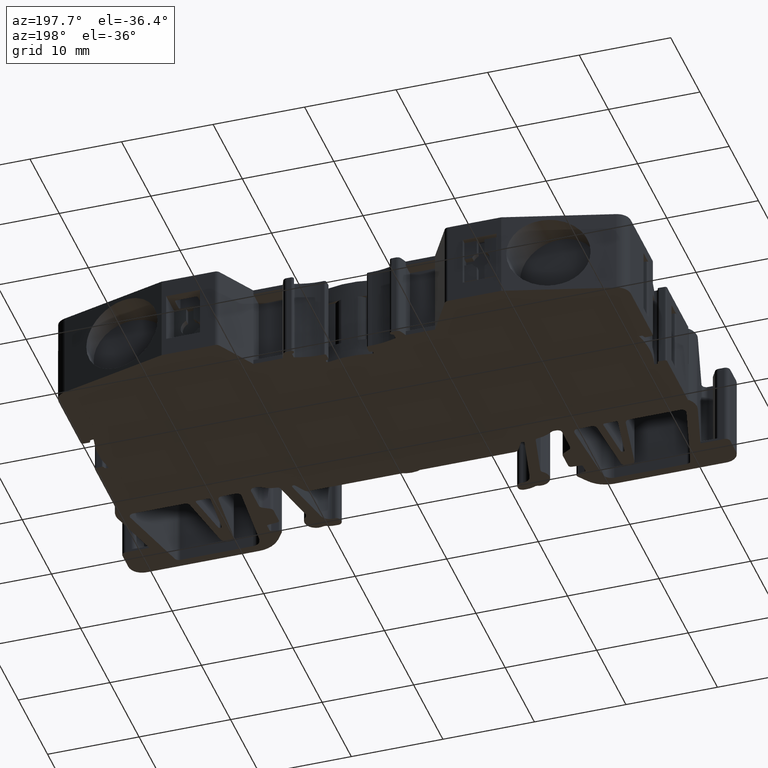
[diagram: clean part render]
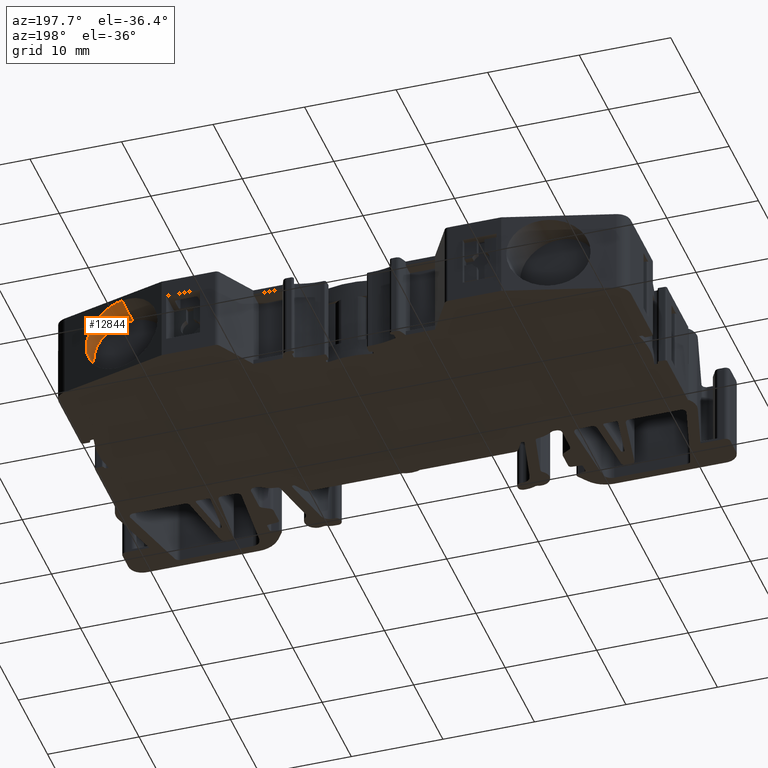
[diagram: same view with one face highlighted and labeled with its STEP entity id]
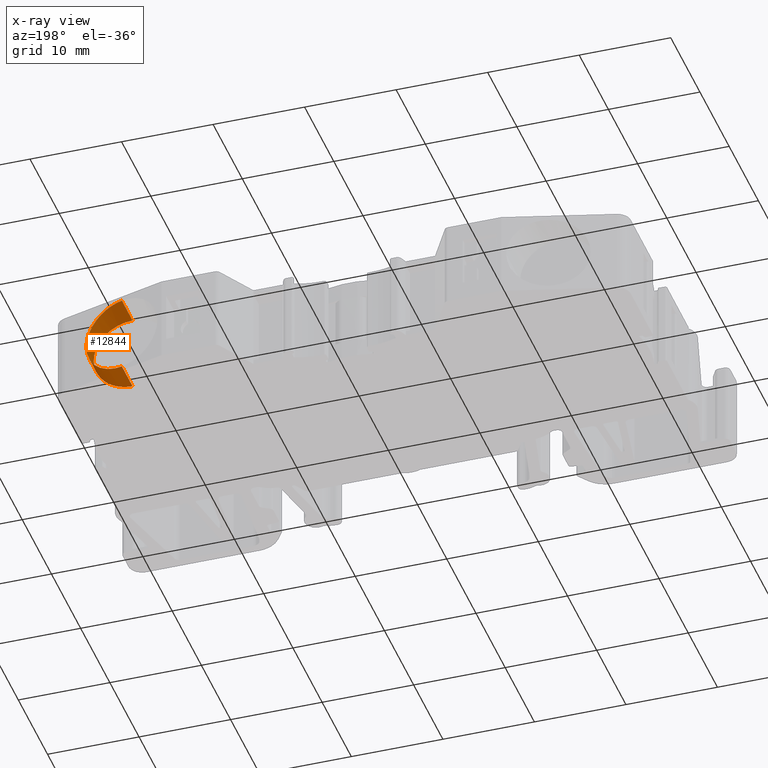
[diagram: x-ray of the same camera — body ghosted, the highlighted face saturated]
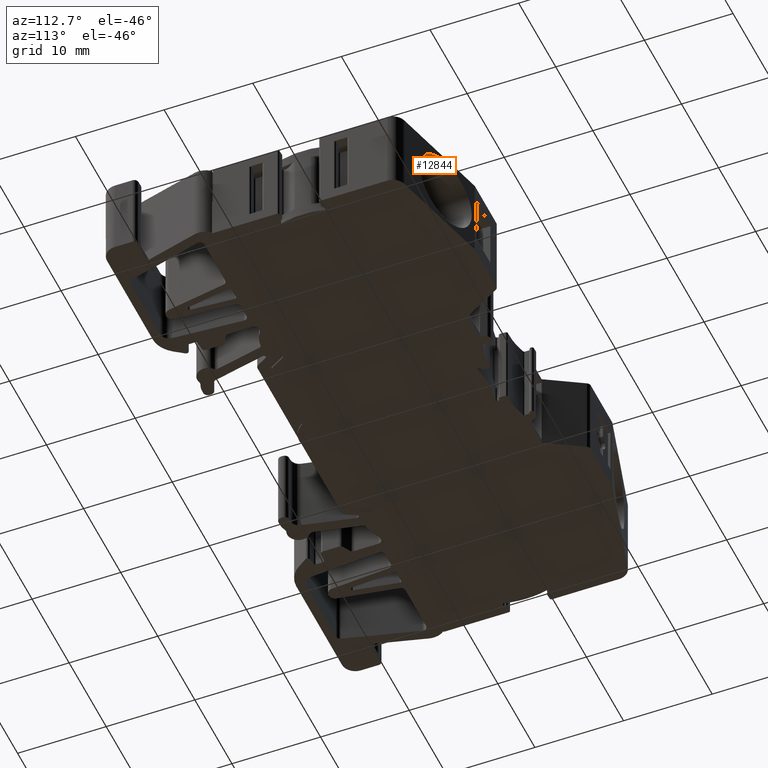
[diagram: same view with one face highlighted and labeled with its STEP entity id]
A machine part, auxiliary view. The second image highlights one B-rep face of the part: STEP entity #12844.
The next image is the same camera in x-ray: the body ghosted, the highlighted face saturated — about 0% of this face is hidden behind the body in this view.
A second angle (auxiliary view) of the same face is appended — the face is thin or edge-on in the first view.
In plain terms, the highlighted cylindrical surface (partial cylindrical patch) has radius 4.25 mm, axis along (0, -1, 0).
Its self-contained STEP definition (entity closure, byte-faithful):
#730 = DIRECTION ( 'NONE',  ( 0.0000000000000000000, 0.0000000000000000000, -1.000000000000000000 ) ) ;
#734 = DIRECTION ( 'NONE',  ( 0.0000000000000000000, -1.000000000000000000, 0.0000000000000000000 ) ) ;
#737 = CYLINDRICAL_SURFACE ( 'NONE', #4716, 4.249998429608922400 ) ;
#742 = FACE_OUTER_BOUND ( 'NONE', #8995, .T. ) ;
#767 = CARTESIAN_POINT ( 'NONE',  ( 202.6232521568620100, 18.70002899448250100, -21.05000000000000400 ) ) ;
#1149 = VERTEX_POINT ( 'NONE', #11266 ) ;
#1191 = VERTEX_POINT ( 'NONE', #11234 ) ;
#1196 = VERTEX_POINT ( 'NONE', #11309 ) ;
#1199 = VERTEX_POINT ( 'NONE', #11312 ) ;
#1592 = CARTESIAN_POINT ( 'NONE',  ( 203.7439276126159500, 26.67281906321895600, -16.94618158984575400 ) ) ;
#1594 = CARTESIAN_POINT ( 'NONE',  ( 204.5162246127601400, 26.67281906321895200, -17.24007167408686000 ) ) ;
#1595 = CARTESIAN_POINT ( 'NONE',  ( 204.8277135129588400, 26.67281906321895600, -17.41571718429832000 ) ) ;
#1596 = CARTESIAN_POINT ( 'NONE',  ( 205.7320747286328200, 26.67281906321895900, -18.14839089846337900 ) ) ;
#1606 = CARTESIAN_POINT ( 'NONE',  ( 204.8875685835404300, 26.67281906321895600, -17.45268893655394400 ) ) ;
#1611 = CARTESIAN_POINT ( 'NONE',  ( 204.1543089963842300, 26.67281906321895900, -17.08520484603284800 ) ) ;
#1612 = CARTESIAN_POINT ( 'NONE',  ( 205.4212151421462200, 26.67281906321894200, -17.83761007424729800 ) ) ;
#1621 = CARTESIAN_POINT ( 'NONE',  ( 202.6232521568620100, 26.67281906321895200, -16.80000157039107500 ) ) ;
#1622 = CARTESIAN_POINT ( 'NONE',  ( 202.8935533686545500, 26.67281906321895900, -16.80006903219330300 ) ) ;
#1623 = CARTESIAN_POINT ( 'NONE',  ( 203.2918295196973300, 26.67281906321895600, -16.83741957982308400 ) ) ;
#1625 = CARTESIAN_POINT ( 'NONE',  ( 203.9668373049175300, 26.67281906321894900, -17.01685918763739400 ) ) ;
#1626 = CARTESIAN_POINT ( 'NONE',  ( 204.0616973114415500, 26.67281906321895200, -17.05064171371531500 ) ) ;
#1627 = CARTESIAN_POINT ( 'NONE',  ( 204.3210344866997700, 26.67281906321895200, -17.15118651894824000 ) ) ;
#1628 = CARTESIAN_POINT ( 'NONE',  ( 205.1941894129159000, 26.67281906321895200, -17.65309621243929100 ) ) ;
#1630 = CARTESIAN_POINT ( 'NONE',  ( 204.1247878227358700, 26.67281906321895600, -17.07393942599489400 ) ) ;
#1631 = CARTESIAN_POINT ( 'NONE',  ( 204.7040940453430800, 26.67281906321895600, -17.34351755068570700 ) ) ;
#1638 = CARTESIAN_POINT ( 'NONE',  ( 205.0706115039196200, 26.67281906321894900, -24.52538858183551100 ) ) ;
#1639 = CARTESIAN_POINT ( 'NONE',  ( 206.5993372307478400, 26.67281906321895600, -22.55147375846289400 ) ) ;
#1644 = CARTESIAN_POINT ( 'NONE',  ( 204.2190275615986400, 26.67281906321895600, -24.98917394058115000 ) ) ;
#1645 = CARTESIAN_POINT ( 'NONE',  ( 206.8732842854665500, 26.67281906321896300, -21.32004559409609700 ) ) ;
#1646 = CARTESIAN_POINT ( 'NONE',  ( 206.0986407386915600, 26.67281906321895200, -18.60264065292976500 ) ) ;
#1647 = CARTESIAN_POINT ( 'NONE',  ( 206.7737165647031900, 26.67281906321895200, -19.98774404757745400 ) ) ;
#1648 = CARTESIAN_POINT ( 'NONE',  ( 206.3297346061695200, 26.67281906321894900, -23.13084188849418500 ) ) ;
#1649 = CARTESIAN_POINT ( 'NONE',  ( 205.5248612583842500, 26.67281906321894900, -24.15882257177766600 ) ) ;
#1650 = CARTESIAN_POINT ( 'NONE',  ( 206.2589916410585700, 26.67281906321895600, -18.84441288104633500 ) ) ;
#1651 = CARTESIAN_POINT ( 'NONE',  ( 206.5624218769674800, 26.67281906321894500, -19.45421393834201500 ) ) ;
#1652 = CARTESIAN_POINT ( 'NONE',  ( 205.1887052291402300, 26.67281906321894900, -24.43919178825494100 ) ) ;
#1653 = CARTESIAN_POINT ( 'NONE',  ( 204.8288392758268200, 26.67281906321895200, -24.68573948419177100 ) ) ;
#1654 = CARTESIAN_POINT ( 'NONE',  ( 206.5479782850425200, 26.67281906321894900, -19.41896480366455100 ) ) ;
#1656 = CARTESIAN_POINT ( 'NONE',  ( 206.6226570719518600, 26.67281906321895200, -22.48832733079756700 ) ) ;
#1657 = CARTESIAN_POINT ( 'NONE',  ( 205.0089194862098300, 26.67281906321895200, -24.56797467030758900 ) ) ;
#1658 = CARTESIAN_POINT ( 'NONE',  ( 206.8360096084350300, 26.67281906321895200, -21.71813003186632300 ) ) ;
#1659 = CARTESIAN_POINT ( 'NONE',  ( 206.6564704204604700, 26.67281906321895200, -22.39338944075665000 ) ) ;
#1660 = CARTESIAN_POINT ( 'NONE',  ( 205.8787929875871300, 26.67281906321896300, -18.31103136914929100 ) ) ;
#1662 = CARTESIAN_POINT ( 'NONE',  ( 205.3622207876875900, 26.67281906321896300, -24.30554083073697700 ) ) ;
#1663 = CARTESIAN_POINT ( 'NONE',  ( 206.5199073118943100, 26.67281906321894500, -19.35297088574830600 ) ) ;
#1664 = CARTESIAN_POINT ( 'NONE',  ( 206.2575349725593400, 26.67281906321894500, -23.25446135610523200 ) ) ;
#1665 = CARTESIAN_POINT ( 'NONE',  ( 202.6232521568620100, 26.67281906321895200, -25.29999842960892300 ) ) ;
#1667 = CARTESIAN_POINT ( 'NONE',  ( 206.3671701993935700, 26.67281906321894200, -19.02960781811725600 ) ) ;
#1668 = CARTESIAN_POINT ( 'NONE',  ( 206.5880473108303800, 26.67281906321895200, -22.58105683951980300 ) ) ;
#1669 = CARTESIAN_POINT ( 'NONE',  ( 206.5220656379087800, 26.67281906321895200, -22.74778232984732200 ) ) ;
#1670 = CARTESIAN_POINT ( 'NONE',  ( 206.2205632203171300, 26.67281906321895600, -23.31431642666562000 ) ) ;
#1671 = CARTESIAN_POINT ( 'NONE',  ( 206.0201559443864900, 26.67281906321894900, -23.62093725610522200 ) ) ;
#1672 = CARTESIAN_POINT ( 'NONE',  ( 204.6436443387642300, 26.67281906321894500, -24.79391804252323400 ) ) ;
#1673 = CARTESIAN_POINT ( 'NONE',  ( 204.2542873532027300, 26.67281906321895900, -24.97472612817825800 ) ) ;
#1674 = CARTESIAN_POINT ( 'NONE',  ( 203.6856786200267800, 26.67281906321894200, -25.20039688023088300 ) ) ;
#1675 = CARTESIAN_POINT ( 'NONE',  ( 203.1642113074984200, 26.67281906321895600, -25.29986341697250700 ) ) ;
#1676 = CARTESIAN_POINT ( 'NONE',  ( 206.4331804827665500, 26.67281906321895600, -22.94297245591487000 ) ) ;
#1677 = CARTESIAN_POINT ( 'NONE',  ( 204.4186328071688800, 26.67281906321895900, -24.90335041335939400 ) ) ;
#1678 = CARTESIAN_POINT ( 'NONE',  ( 206.0124439451076100, 26.67281906321895900, -18.48454692770199500 ) ) ;
#1679 = CARTESIAN_POINT ( 'NONE',  ( 206.7272033405633600, 26.67281906321895200, -22.17033995752727500 ) ) ;
#1680 = CARTESIAN_POINT ( 'NONE',  ( 204.3202812711232100, 26.67281906321895200, -24.94665515502836000 ) ) ;
#1681 = CARTESIAN_POINT ( 'NONE',  ( 206.8731831884798600, 26.67281906321895200, -20.50990881180781500 ) ) ;
#1684 = CARTESIAN_POINT ( 'NONE',  ( 206.4766025702276100, 26.67281906321895200, -19.25461934970783100 ) ) ;
#1687 = CARTESIAN_POINT ( 'NONE',  ( 206.1412268271672300, 26.67281906321895900, -18.66433267064652700 ) ) ;
#1688 = CARTESIAN_POINT ( 'NONE',  ( 205.8356420826434300, 26.67281906321895200, -23.84796298527060500 ) ) ;
#2714 = EDGE_CURVE ( 'NONE', #1199, #1196, #5210, .T. ) ;
#3028 = EDGE_CURVE ( 'NONE', #1191, #1149, #5291, .T. ) ;
#4453 = VECTOR ( 'NONE', #10139, 1000.000000000000000 ) ;
#4465 = VECTOR ( 'NONE', #10117, 1000.000000000000000 ) ;
#4716 = AXIS2_PLACEMENT_3D ( 'NONE', #767, #734, #730 ) ;
#5210 = B_SPLINE_CURVE_WITH_KNOTS ( 'NONE', 3,
 ( #1621, #1622, #1623, #1592, #1625, #1626, #1630, #1611, #1627, #1594, #1631, #1595, #1606, #1628, #1612, #1596, #1660, #1678, #1646, #1687, #1650, #1667, #1684, #1663, #1654, #1651, #1647, #1681, #1645, #1658, #1679, #1659, #1656, #1639, #1668, #1669, #1676, #1648, #1664, #1670, #1671, #1688, #1649, #1662, #1652, #1638, #1657, #1653, #1672, #1677, #1680, #1673, #1644, #1674, #1675, #1665 ),
 .UNSPECIFIED., .F., .F.,
 ( 4, 1, 1, 1, 2, 2, 1, 2, 2, 2, 1, 2, 2, 1, 1, 2, 2, 2, 1, 1, 1, 2, 2, 1, 2, 2, 2, 1, 2, 2, 1, 1, 2, 2, 4 ),
 ( 0.0000000000000000000, 0.06249999999999297800, 0.09374999999998955000, 0.1093749999999848300, 0.1171874999999825800, 0.1249999999999803500, 0.1562499999999879800, 0.1718749999999916500, 0.1874999999999953100, 0.2500000000000045500, 0.2812500000000115500, 0.2968750000000171500, 0.3125000000000227600, 0.3437500000000340800, 0.3593750000000394100, 0.3671875000000416900, 0.3750000000000439600, 0.5000000000000539600, 0.5625000000000594000, 0.5937500000000622800, 0.6093750000000637300, 0.6171875000000637300, 0.6250000000000637300, 0.6562500000000618400, 0.6718750000000608400, 0.6875000000000598400, 0.7500000000000494000, 0.7812500000000465200, 0.7968750000000428500, 0.8125000000000390800, 0.8437500000000315300, 0.8593750000000277600, 0.8671875000000229800, 0.8750000000000182100, 1.000000000000000000 ),
 .UNSPECIFIED. ) ;
#5291 = B_SPLINE_CURVE_WITH_KNOTS ( 'NONE', 3,
 ( #6446, #6401, #6451, #6465, #6472, #6462, #6463, #6459, #6476, #6449, #6455, #6456, #6450, #6464, #6466, #6452, #6453, #6457, #6458, #6460, #6504, #6515, #6494, #6501, #6490, #6518, #6521, #6526, #6513, #6512, #6506, #6502, #6525, #6516, #6505, #6519, #6517, #6477, #6489, #6503, #6530, #6531, #6491, #6520, #6522, #6478, #6507, #6487, #6523, #6524, #6508, #6527, #6509, #6495, #6492, #6486, #6528, #6485, #6499, #6529, #6500, #6510, #6532, #6488, #6511, #6493, #6496, #6479, #6480, #6481, #6482, #6497, #6514, #6498, #6483, #6484, #6547, #6562, #6568, #6569, #6564 ),
 .UNSPECIFIED., .F., .F.,
 ( 4, 1, 1, 1, 1, 1, 2, 2, 1, 1, 1, 1, 1, 2, 2, 1, 1, 1, 2, 2, 1, 1, 1, 2, 2, 1, 1, 2, 2, 2, 1, 1, 2, 2, 1, 1, 1, 2, 2, 1, 1, 1, 2, 2, 1, 1, 1, 1, 2, 2, 1, 1, 1, 1, 1, 2, 2, 4 ),
 ( 0.0000000000000000000, 0.06249999999979025100, 0.09374999999968537700, 0.1093749999996329600, 0.1171874999996029700, 0.1210937499995920100, 0.1230468749995866400, 0.1249999999995812800, 0.1874999999995897400, 0.2187499999995942400, 0.2343749999995937400, 0.2421874999995937400, 0.2460937499995938500, 0.2480468749995940200, 0.2499999999995941600, 0.2812499999996324100, 0.2968749999996516700, 0.3046874999996591100, 0.3085937499996625500, 0.3124999999996659300, 0.3437499999996888000, 0.3593749999997000200, 0.3671874999997069600, 0.3710937499997107300, 0.3749999999997145100, 0.4062499999997590300, 0.4218749999997803400, 0.4296874999997907200, 0.4374999999998010500, 0.4999999999998905300, 0.5312499999999348300, 0.5468749999999570300, 0.5546874999999681400, 0.5624999999999792400, 0.5937500000000210900, 0.6093750000000415200, 0.6171875000000527400, 0.6210937500000586200, 0.6250000000000643900, 0.6562500000001112400, 0.6718750000001344500, 0.6796875000001443300, 0.6835937500001476600, 0.6875000000001509900, 0.7187500000001674200, 0.7343750000001751900, 0.7421875000001791900, 0.7460937500001831900, 0.7480468750001850700, 0.7500000000001869600, 0.8125000000001126900, 0.8437500000000756100, 0.8593750000000600600, 0.8671875000000524000, 0.8710937500000517400, 0.8730468750000514000, 0.8750000000000509600, 1.000000000000000000 ),
 .UNSPECIFIED. ) ;
#6401 = CARTESIAN_POINT ( 'NONE',  ( 202.8256892240093000, 30.28343218030459700, -25.29994934713532100 ) ) ;
#6446 = CARTESIAN_POINT ( 'NONE',  ( 202.6232521568620100, 30.33767499074913600, -25.29999842960892300 ) ) ;
#6449 = CARTESIAN_POINT ( 'NONE',  ( 203.8055298128492700, 30.02088487078636800, -25.13224941471622000 ) ) ;
#6450 = CARTESIAN_POINT ( 'NONE',  ( 204.8034047851970500, 29.75350526617568300, -24.70254321252278700 ) ) ;
#6451 = CARTESIAN_POINT ( 'NONE',  ( 203.1262669694060900, 30.20289267290531800, -25.27866254313208900 ) ) ;
#6452 = CARTESIAN_POINT ( 'NONE',  ( 205.1279982267542200, 29.66653077691822200, -24.48354325261196600 ) ) ;
#6453 = CARTESIAN_POINT ( 'NONE',  ( 205.1474222975510300, 29.66132611650132500, -24.46922753808256700 ) ) ;
#6455 = CARTESIAN_POINT ( 'NONE',  ( 204.0603526548584900, 29.95260534416199500, -25.05796897909192100 ) ) ;
#6456 = CARTESIAN_POINT ( 'NONE',  ( 204.4156782953223800, 29.85739619282741200, -24.91894687550026800 ) ) ;
#6457 = CARTESIAN_POINT ( 'NONE',  ( 205.1603517226576800, 29.65786168992619000, -24.45964339267547100 ) ) ;
#6458 = CARTESIAN_POINT ( 'NONE',  ( 205.1658027479639100, 29.65640109312652200, -24.45558375369369100 ) ) ;
#6459 = CARTESIAN_POINT ( 'NONE',  ( 203.7889630164734700, 30.02532392736894100, -25.13700663451011900 ) ) ;
#6460 = CARTESIAN_POINT ( 'NONE',  ( 205.2924266812441700, 29.62247233636544800, -24.36063858358259200 ) ) ;
#6462 = CARTESIAN_POINT ( 'NONE',  ( 203.7281641180118200, 30.04161493163497800, -25.15399527915025100 ) ) ;
#6463 = CARTESIAN_POINT ( 'NONE',  ( 203.7707359709509700, 30.03020784605625300, -25.14219023508696100 ) ) ;
#6464 = CARTESIAN_POINT ( 'NONE',  ( 204.9905630074677800, 29.70335640699281400, -24.58078857883723600 ) ) ;
#6465 = CARTESIAN_POINT ( 'NONE',  ( 203.4715547588851600, 30.11037315374095900, -25.21670487294916200 ) ) ;
#6466 = CARTESIAN_POINT ( 'NONE',  ( 205.0824658629364300, 29.67873112843713200, -24.51652306144525900 ) ) ;
#6472 = CARTESIAN_POINT ( 'NONE',  ( 203.6428520919202500, 30.06447420402580700, -25.17644527147957200 ) ) ;
#6476 = CARTESIAN_POINT ( 'NONE',  ( 203.8011103725311300, 30.02206905541631000, -25.13352327946373400 ) ) ;
#6477 = CARTESIAN_POINT ( 'NONE',  ( 206.7207158322822800, 29.23976368141665800, -22.17921216715987900 ) ) ;
#6478 = CARTESIAN_POINT ( 'NONE',  ( 206.7636052303181500, 29.22827150994572800, -20.08982881875702700 ) ) ;
#6479 = CARTESIAN_POINT ( 'NONE',  ( 205.1881578426213700, 29.65041106778649300, -17.66122177470590400 ) ) ;
#6480 = CARTESIAN_POINT ( 'NONE',  ( 205.1796852392456600, 29.65268129341935600, -17.65482793260064700 ) ) ;
#6481 = CARTESIAN_POINT ( 'NONE',  ( 204.9673624268450600, 29.70957297945485800, -17.49554761510393100 ) ) ;
#6482 = CARTESIAN_POINT ( 'NONE',  ( 204.6429458988238500, 29.79650006490663100, -17.29470741560503600 ) ) ;
#6483 = CARTESIAN_POINT ( 'NONE',  ( 203.8672381391405100, 30.00435018623955600, -16.98607918471396500 ) ) ;
#6484 = CARTESIAN_POINT ( 'NONE',  ( 203.8441315373689800, 30.01054157716203000, -16.97912851676726800 ) ) ;
#6485 = CARTESIAN_POINT ( 'NONE',  ( 205.9168758556136800, 29.45515180226131200, -18.36346529946978400 ) ) ;
#6486 = CARTESIAN_POINT ( 'NONE',  ( 206.1715950758842600, 29.38690004097863500, -18.70093298212744400 ) ) ;
#6487 = CARTESIAN_POINT ( 'NONE',  ( 206.7002743727915700, 29.24524095012042600, -19.83757317806056300 ) ) ;
#6488 = CARTESIAN_POINT ( 'NONE',  ( 205.3775368127836300, 29.59966716141870100, -17.81173395447246900 ) ) ;
#6489 = CARTESIAN_POINT ( 'NONE',  ( 206.7315893435685400, 29.23685013490132800, -22.13901950358820500 ) ) ;
#6490 = CARTESIAN_POINT ( 'NONE',  ( 205.8006797264336900, 29.48628643930337400, -23.87254581953273600 ) ) ;
#6491 = CARTESIAN_POINT ( 'NONE',  ( 206.8569419663066900, 29.20326202453335500, -20.60963326581212500 ) ) ;
#6492 = CARTESIAN_POINT ( 'NONE',  ( 206.2971578741015700, 29.35325561430042600, -18.90728489610226100 ) ) ;
#6493 = CARTESIAN_POINT ( 'NONE',  ( 205.2252040529182000, 29.64048457264832600, -17.68950534272135400 ) ) ;
#6494 = CARTESIAN_POINT ( 'NONE',  ( 205.7382533178441100, 29.50301353328662300, -23.94166386927515700 ) ) ;
#6495 = CARTESIAN_POINT ( 'NONE',  ( 206.3827623833630300, 29.33031797133564200, -19.06784021937073300 ) ) ;
#6496 = CARTESIAN_POINT ( 'NONE',  ( 205.2030015107044700, 29.64643372171307300, -17.67250865653690200 ) ) ;
#6497 = CARTESIAN_POINT ( 'NONE',  ( 204.2371890933576100, 29.90522219665666300, -17.11436430857342100 ) ) ;
#6498 = CARTESIAN_POINT ( 'NONE',  ( 203.9209404897105700, 29.98996069491047200, -17.00271905413427800 ) ) ;
#6499 = CARTESIAN_POINT ( 'NONE',  ( 205.8779885153329900, 29.46557162634425000, -18.31694478528999100 ) ) ;
#6500 = CARTESIAN_POINT ( 'NONE',  ( 205.8375470933130200, 29.47640786508079500, -18.26951038857398400 ) ) ;
#6501 = CARTESIAN_POINT ( 'NONE',  ( 205.7758075977575300, 29.49295090140094200, -23.90030134922299300 ) ) ;
#6502 = CARTESIAN_POINT ( 'NONE',  ( 206.3540612945610600, 29.33800839948386500, -23.08566619457221900 ) ) ;
#6503 = CARTESIAN_POINT ( 'NONE',  ( 206.8296178876447900, 29.21058348418656400, -21.75322510765869300 ) ) ;
#6504 = CARTESIAN_POINT ( 'NONE',  ( 205.4633151004047100, 29.57668295471557600, -24.21793355996320300 ) ) ;
#6505 = CARTESIAN_POINT ( 'NONE',  ( 206.5607104861558100, 29.28263695449037500, -22.66589732488115100 ) ) ;
#6506 = CARTESIAN_POINT ( 'NONE',  ( 206.3345194083705700, 29.34324462841810500, -23.12108520012157000 ) ) ;
#6507 = CARTESIAN_POINT ( 'NONE',  ( 206.7530331618289400, 29.23110428516394100, -20.04541488098980700 ) ) ;
#6508 = CARTESIAN_POINT ( 'NONE',  ( 206.4418975140932800, 29.31447277197555900, -19.18351490728271700 ) ) ;
#6509 = CARTESIAN_POINT ( 'NONE',  ( 206.3933172061936400, 29.32748981707445100, -19.08797657246082100 ) ) ;
#6510 = CARTESIAN_POINT ( 'NONE',  ( 205.7273751673968400, 29.50592832286053700, -18.14324125317450500 ) ) ;
#6511 = CARTESIAN_POINT ( 'NONE',  ( 205.2765692653744900, 29.62672131514824200, -17.72962882121744200 ) ) ;
#6512 = CARTESIAN_POINT ( 'NONE',  ( 206.3048541695561100, 29.35119339960157000, -23.17396578041515200 ) ) ;
#6513 = CARTESIAN_POINT ( 'NONE',  ( 206.2331684122877100, 29.37040152683772800, -23.29561830488712800 ) ) ;
#6514 = CARTESIAN_POINT ( 'NONE',  ( 204.0274929765973900, 29.96141006221241200, -17.03768536982022800 ) ) ;
#6515 = CARTESIAN_POINT ( 'NONE',  ( 205.6489040564207200, 29.52695457886214600, -24.03628099468110000 ) ) ;
#6516 = CARTESIAN_POINT ( 'NONE',  ( 206.4539969916989400, 29.31123072900642500, -22.89864428331430400 ) ) ;
#6517 = CARTESIAN_POINT ( 'NONE',  ( 206.6971495310111200, 29.24607824836208500, -22.26155656323421900 ) ) ;
#6518 = CARTESIAN_POINT ( 'NONE',  ( 205.8120107298285000, 29.48325030823338700, -23.85974973782961000 ) ) ;
#6519 = CARTESIAN_POINT ( 'NONE',  ( 206.6599993495721000, 29.25603260246419200, -22.38435884585623700 ) ) ;
#6520 = CARTESIAN_POINT ( 'NONE',  ( 206.8092563199614900, 29.21603934596008800, -20.30562253826899500 ) ) ;
#6521 = CARTESIAN_POINT ( 'NONE',  ( 205.9316660752731100, 29.45118877763978600, -23.72267773559671500 ) ) ;
#6522 = CARTESIAN_POINT ( 'NONE',  ( 206.7826837777295500, 29.22315943217568100, -20.17605053243275400 ) ) ;
#6523 = CARTESIAN_POINT ( 'NONE',  ( 206.6224652702693700, 29.26608982161638300, -19.59363743112847400 ) ) ;
#6524 = CARTESIAN_POINT ( 'NONE',  ( 206.5063155115579700, 29.29721203373763000, -19.31862574539460200 ) ) ;
#6525 = CARTESIAN_POINT ( 'NONE',  ( 206.3631574936633200, 29.33557108199738700, -23.06891863320221200 ) ) ;
#6526 = CARTESIAN_POINT ( 'NONE',  ( 206.0799294309459200, 29.41146175920902200, -23.53198136897891900 ) ) ;
#6527 = CARTESIAN_POINT ( 'NONE',  ( 206.4129305612995000, 29.32223443811554000, -19.12612347768230200 ) ) ;
#6528 = CARTESIAN_POINT ( 'NONE',  ( 206.0051141026934500, 29.43150845187224000, -18.47370232066059300 ) ) ;
#6529 = CARTESIAN_POINT ( 'NONE',  ( 205.8518256332180300, 29.47258194453965500, -18.28609198105311500 ) ) ;
#6530 = CARTESIAN_POINT ( 'NONE',  ( 206.8732076977371700, 29.19890363800287900, -21.40382577341527400 ) ) ;
#6531 = CARTESIAN_POINT ( 'NONE',  ( 206.8732720308378200, 29.19888640001267900, -20.87308711329237500 ) ) ;
#6532 = CARTESIAN_POINT ( 'NONE',  ( 205.5724203975881600, 29.54744829904205300, -17.98337692603387300 ) ) ;
#6547 = CARTESIAN_POINT ( 'NONE',  ( 203.8287068453724100, 30.01467460801415000, -16.97453489472767900 ) ) ;
#6562 = CARTESIAN_POINT ( 'NONE',  ( 203.8193143788183800, 30.01719131006915500, -16.97177080472781800 ) ) ;
#6564 = CARTESIAN_POINT ( 'NONE',  ( 202.6232521568620100, 30.33767499074913600, -16.80000157039107500 ) ) ;
#6568 = CARTESIAN_POINT ( 'NONE',  ( 203.4252413705392500, 30.12278278000400500, -16.85676648982315100 ) ) ;
#6569 = CARTESIAN_POINT ( 'NONE',  ( 203.0285748504424200, 30.22906917884637300, -16.80009984409503000 ) ) ;
#8995 = EDGE_LOOP ( 'NONE', ( #14848, #14830, #14845, #14853 ) ) ;
#10108 = CARTESIAN_POINT ( 'NONE',  ( 202.6232521568620100, 18.70002899448250100, -25.29999842960892700 ) ) ;
#10117 = DIRECTION ( 'NONE',  ( 0.0000000000000000000, -1.000000000000000000, 0.0000000000000000000 ) ) ;
#10131 = LINE ( 'NONE', #10108, #4465 ) ;
#10132 = CARTESIAN_POINT ( 'NONE',  ( 202.6232521568620100, 18.70002899448250100, -16.80000157039107800 ) ) ;
#10139 = DIRECTION ( 'NONE',  ( 0.0000000000000000000, -1.000000000000000000, 0.0000000000000000000 ) ) ;
#10153 = LINE ( 'NONE', #10132, #4453 ) ;
#11234 = CARTESIAN_POINT ( 'NONE',  ( 202.6232521568620100, 30.33767499074913600, -25.29999842960892300 ) ) ;
#11266 = CARTESIAN_POINT ( 'NONE',  ( 202.6232521568620100, 30.33767499074913600, -16.80000157039107500 ) ) ;
#11309 = CARTESIAN_POINT ( 'NONE',  ( 202.6232521568620100, 26.67281906321895200, -25.29999842960892300 ) ) ;
#11312 = CARTESIAN_POINT ( 'NONE',  ( 202.6232521568620100, 26.67281906321895200, -16.80000157039107500 ) ) ;
#12511 = EDGE_CURVE ( 'NONE', #1191, #1196, #10131, .T. ) ;
#12516 = EDGE_CURVE ( 'NONE', #1149, #1199, #10153, .T. ) ;
#12844 = ADVANCED_FACE ( 'NONE', ( #742 ), #737, .F. ) ;
#14830 = ORIENTED_EDGE ( 'NONE', *, *, #3028, .F. ) ;
#14845 = ORIENTED_EDGE ( 'NONE', *, *, #12511, .T. ) ;
#14848 = ORIENTED_EDGE ( 'NONE', *, *, #12516, .F. ) ;
#14853 = ORIENTED_EDGE ( 'NONE', *, *, #2714, .F. ) ;